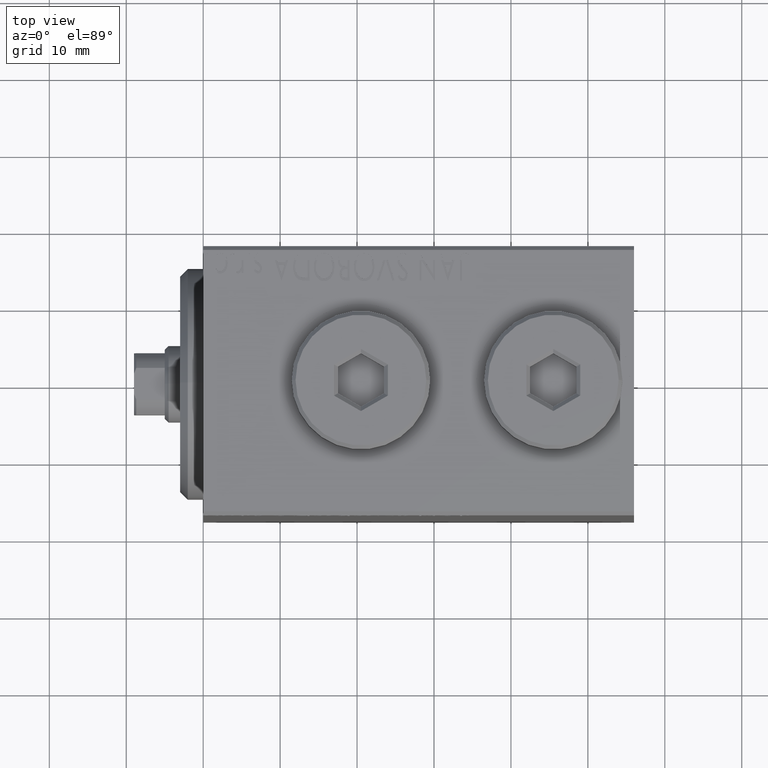
[diagram: clean part render]
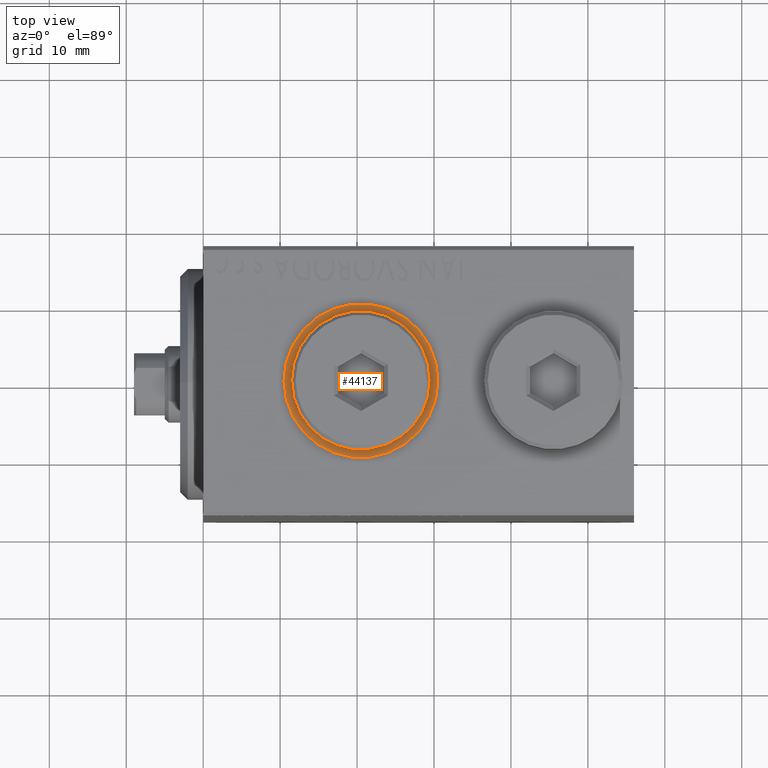
[diagram: same view with one face highlighted and labeled with its STEP entity id]
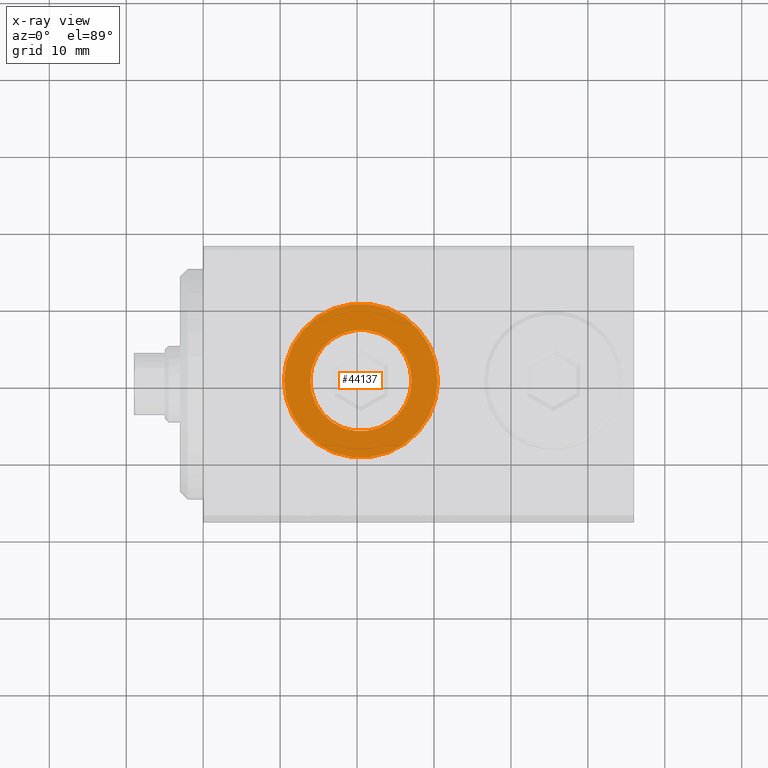
[diagram: x-ray of the same camera — body ghosted, the highlighted face saturated]
A machine part, top view. The second image highlights one B-rep face of the part: STEP entity #44137.
The next image is the same camera in x-ray: the body ghosted, the highlighted face saturated — about 0% of this face is hidden behind the body in this view.
In plain terms, the highlighted planar face has unit normal (0, 0, 1).
Its self-contained STEP definition (entity closure, byte-faithful):
#534 = CIRCLE ( 'NONE', #12294, 9.999999999999998224 ) ;
#627 = CARTESIAN_POINT ( 'NONE',  ( 20.50000000000000000, 1.486905836551550657E-15, 27.39999999999999147 ) ) ;
#950 = CARTESIAN_POINT ( 'NONE',  ( 20.50000000000000000, 1.486905836551550657E-15, 27.39999999999999147 ) ) ;
#1327 = DIRECTION ( 'NONE',  ( 0.000000000000000000, 0.000000000000000000, 1.000000000000000000 ) ) ;
#2549 = CIRCLE ( 'NONE', #30473, 6.580000000000002736 ) ;
#2807 = ORIENTED_EDGE ( 'NONE', *, *, #42640, .T. ) ;
#2828 = EDGE_CURVE ( 'NONE', #32399, #11613, #2549, .T. ) ;
#3728 = DIRECTION ( 'NONE',  ( 0.000000000000000000, 0.000000000000000000, 1.000000000000000000 ) ) ;
#4073 = FACE_OUTER_BOUND ( 'NONE', #8242, .T. ) ;
#5543 = AXIS2_PLACEMENT_3D ( 'NONE', #950, #3728, #18196 ) ;
#5655 = CARTESIAN_POINT ( 'NONE',  ( 10.50000000000000355, 2.711552635698903519E-15, 27.39999999999999147 ) ) ;
#8242 = EDGE_LOOP ( 'NONE', ( #43378, #2807 ) ) ;
#8441 = DIRECTION ( 'NONE',  ( 1.000000000000000000, 0.000000000000000000, 0.000000000000000000 ) ) ;
#10217 = ORIENTED_EDGE ( 'NONE', *, *, #2828, .F. ) ;
#11613 = VERTEX_POINT ( 'NONE', #12303 ) ;
#12294 = AXIS2_PLACEMENT_3D ( 'NONE', #21259, #21482, #38086 ) ;
#12303 = CARTESIAN_POINT ( 'NONE',  ( 13.91999999999999815, 2.292723430390509107E-15, 27.39999999999999147 ) ) ;
#12714 = ORIENTED_EDGE ( 'NONE', *, *, #37874, .F. ) ;
#14246 = CARTESIAN_POINT ( 'NONE',  ( 20.50000000000000000, 1.486905836551550657E-15, 27.39999999999999147 ) ) ;
#14656 = EDGE_CURVE ( 'NONE', #31231, #25415, #534, .T. ) ;
#17351 = AXIS2_PLACEMENT_3D ( 'NONE', #17860, #34918, #31690 ) ;
#17860 = CARTESIAN_POINT ( 'NONE',  ( 20.50000000000000000, 1.486905836551550657E-15, 27.39999999999999147 ) ) ;
#18089 = EDGE_LOOP ( 'NONE', ( #10217, #12714 ) ) ;
#18196 = DIRECTION ( 'NONE',  ( 1.000000000000000000, 0.000000000000000000, 0.000000000000000000 ) ) ;
#19368 = AXIS2_PLACEMENT_3D ( 'NONE', #627, #1327, #8441 ) ;
#21259 = CARTESIAN_POINT ( 'NONE',  ( 20.50000000000000000, 1.486905836551550657E-15, 27.39999999999999147 ) ) ;
#21321 = FACE_BOUND ( 'NONE', #18089, .T. ) ;
#21482 = DIRECTION ( 'NONE',  ( 0.000000000000000000, 0.000000000000000000, 1.000000000000000000 ) ) ;
#22293 = DIRECTION ( 'NONE',  ( 0.000000000000000000, 0.000000000000000000, 1.000000000000000000 ) ) ;
#25415 = VERTEX_POINT ( 'NONE', #5655 ) ;
#25948 = CARTESIAN_POINT ( 'NONE',  ( 30.50000000000000000, 1.486905836551550657E-15, 27.39999999999999147 ) ) ;
#29199 = DIRECTION ( 'NONE',  ( 1.000000000000000000, 0.000000000000000000, 0.000000000000000000 ) ) ;
#30473 = AXIS2_PLACEMENT_3D ( 'NONE', #14246, #22293, #29199 ) ;
#31231 = VERTEX_POINT ( 'NONE', #25948 ) ;
#31690 = DIRECTION ( 'NONE',  ( 1.000000000000000000, 0.000000000000000000, -0.000000000000000000 ) ) ;
#32399 = VERTEX_POINT ( 'NONE', #37162 ) ;
#32629 = CIRCLE ( 'NONE', #19368, 6.580000000000002736 ) ;
#34918 = DIRECTION ( 'NONE',  ( 0.000000000000000000, 0.000000000000000000, 1.000000000000000000 ) ) ;
#37162 = CARTESIAN_POINT ( 'NONE',  ( 27.08000000000000185, 1.486905836551550657E-15, 27.39999999999999147 ) ) ;
#37874 = EDGE_CURVE ( 'NONE', #11613, #32399, #32629, .T. ) ;
#38086 = DIRECTION ( 'NONE',  ( 1.000000000000000000, 0.000000000000000000, 0.000000000000000000 ) ) ;
#38819 = PLANE ( 'NONE',  #17351 ) ;
#42640 = EDGE_CURVE ( 'NONE', #25415, #31231, #43039, .T. ) ;
#43039 = CIRCLE ( 'NONE', #5543, 9.999999999999998224 ) ;
#43378 = ORIENTED_EDGE ( 'NONE', *, *, #14656, .T. ) ;
#44137 = ADVANCED_FACE ( 'NONE', ( #21321, #4073 ), #38819, .T. ) ;